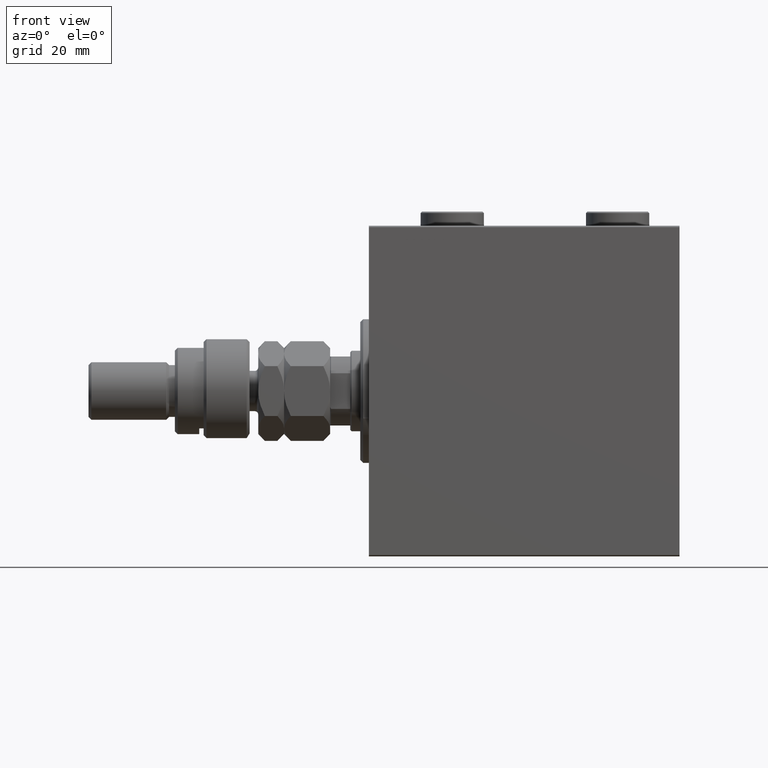
[diagram: clean part render]
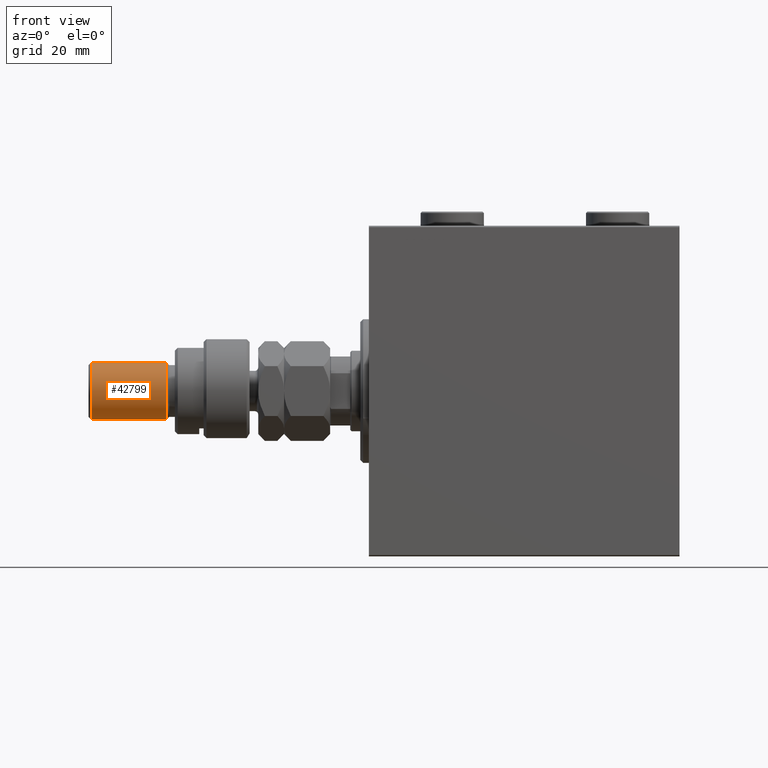
[diagram: same view with one face highlighted and labeled with its STEP entity id]
A machine part, front view. The second image highlights one B-rep face of the part: STEP entity #42799.
In plain terms, the highlighted cylindrical surface (edge-blend (fillet) strip) has radius 10 mm, axis along (1, -0, -0).
Its self-contained STEP definition (entity closure, byte-faithful):
#611 = CARTESIAN_POINT ( 'NONE',  ( -10.00000000000000000, 0.000000000000000000, 29.00000000000000711 ) ) ;
#1152 = DIRECTION ( 'NONE',  ( -0.000000000000000000, -0.000000000000000000, -1.000000000000000000 ) ) ;
#1276 = ORIENTED_EDGE ( 'NONE', *, *, #18320, .T. ) ;
#1284 = ORIENTED_EDGE ( 'NONE', *, *, #43631, .T. ) ;
#1548 = DIRECTION ( 'NONE',  ( -0.000000000000000000, -0.000000000000000000, 1.000000000000000000 ) ) ;
#3498 = CARTESIAN_POINT ( 'NONE',  ( -10.00000000000000000, 0.000000000000000000, 56.00000000000000711 ) ) ;
#5503 = VERTEX_POINT ( 'NONE', #25225 ) ;
#11042 = VERTEX_POINT ( 'NONE', #611 ) ;
#11508 = EDGE_LOOP ( 'NONE', ( #37364, #1276, #44938, #1284 ) ) ;
#12193 = VERTEX_POINT ( 'NONE', #44831 ) ;
#15834 = EDGE_CURVE ( 'NONE', #12193, #5503, #30873, .T. ) ;
#16691 = VERTEX_POINT ( 'NONE', #24056 ) ;
#18152 = DIRECTION ( 'NONE',  ( 0.000000000000000000, 0.000000000000000000, -1.000000000000000000 ) ) ;
#18320 = EDGE_CURVE ( 'NONE', #12193, #16691, #29632, .T. ) ;
#18498 = CARTESIAN_POINT ( 'NONE',  ( 0.000000000000000000, 0.000000000000000000, 56.00000000000000711 ) ) ;
#21685 = CYLINDRICAL_SURFACE ( 'NONE', #39695, 10.00000000000000000 ) ;
#21830 = AXIS2_PLACEMENT_3D ( 'NONE', #27141, #1548, #31750 ) ;
#24056 = CARTESIAN_POINT ( 'NONE',  ( -10.00000000000000000, 0.000000000000000000, 54.99999999999998579 ) ) ;
#25225 = CARTESIAN_POINT ( 'NONE',  ( 10.00000000000000000, 1.224646799147353256E-15, 29.00000000000000711 ) ) ;
#27141 = CARTESIAN_POINT ( 'NONE',  ( 0.000000000000000000, 0.000000000000000000, 29.00000000000000711 ) ) ;
#29632 = CIRCLE ( 'NONE', #42077, 10.00000000000000000 ) ;
#30873 = LINE ( 'NONE', #38198, #47482 ) ;
#31750 = DIRECTION ( 'NONE',  ( 1.000000000000000000, 0.000000000000000000, 0.000000000000000000 ) ) ;
#32739 = EDGE_CURVE ( 'NONE', #16691, #11042, #48079, .T. ) ;
#36558 = DIRECTION ( 'NONE',  ( -1.000000000000000000, 0.000000000000000000, 0.000000000000000000 ) ) ;
#36692 = CARTESIAN_POINT ( 'NONE',  ( 0.000000000000000000, 0.000000000000000000, 54.99999999999998579 ) ) ;
#36801 = DIRECTION ( 'NONE',  ( -0.000000000000000000, -0.000000000000000000, -1.000000000000000000 ) ) ;
#36928 = DIRECTION ( 'NONE',  ( 1.000000000000000000, 0.000000000000000000, 0.000000000000000000 ) ) ;
#37364 = ORIENTED_EDGE ( 'NONE', *, *, #15834, .F. ) ;
#38198 = CARTESIAN_POINT ( 'NONE',  ( 10.00000000000000000, 1.224646799147353256E-15, 56.00000000000000711 ) ) ;
#39695 = AXIS2_PLACEMENT_3D ( 'NONE', #18498, #36801, #36558 ) ;
#40060 = DIRECTION ( 'NONE',  ( -0.000000000000000000, -0.000000000000000000, -1.000000000000000000 ) ) ;
#41827 = VECTOR ( 'NONE', #40060, 1000.000000000000000 ) ;
#42077 = AXIS2_PLACEMENT_3D ( 'NONE', #36692, #18152, #36928 ) ;
#42799 = ADVANCED_FACE ( 'NONE', ( #44077 ), #21685, .T. ) ;
#43631 = EDGE_CURVE ( 'NONE', #11042, #5503, #45949, .T. ) ;
#44077 = FACE_OUTER_BOUND ( 'NONE', #11508, .T. ) ;
#44831 = CARTESIAN_POINT ( 'NONE',  ( 10.00000000000000000, 1.224646799147353256E-15, 54.99999999999998579 ) ) ;
#44938 = ORIENTED_EDGE ( 'NONE', *, *, #32739, .T. ) ;
#45949 = CIRCLE ( 'NONE', #21830, 10.00000000000000000 ) ;
#47482 = VECTOR ( 'NONE', #1152, 1000.000000000000000 ) ;
#48079 = LINE ( 'NONE', #3498, #41827 ) ;